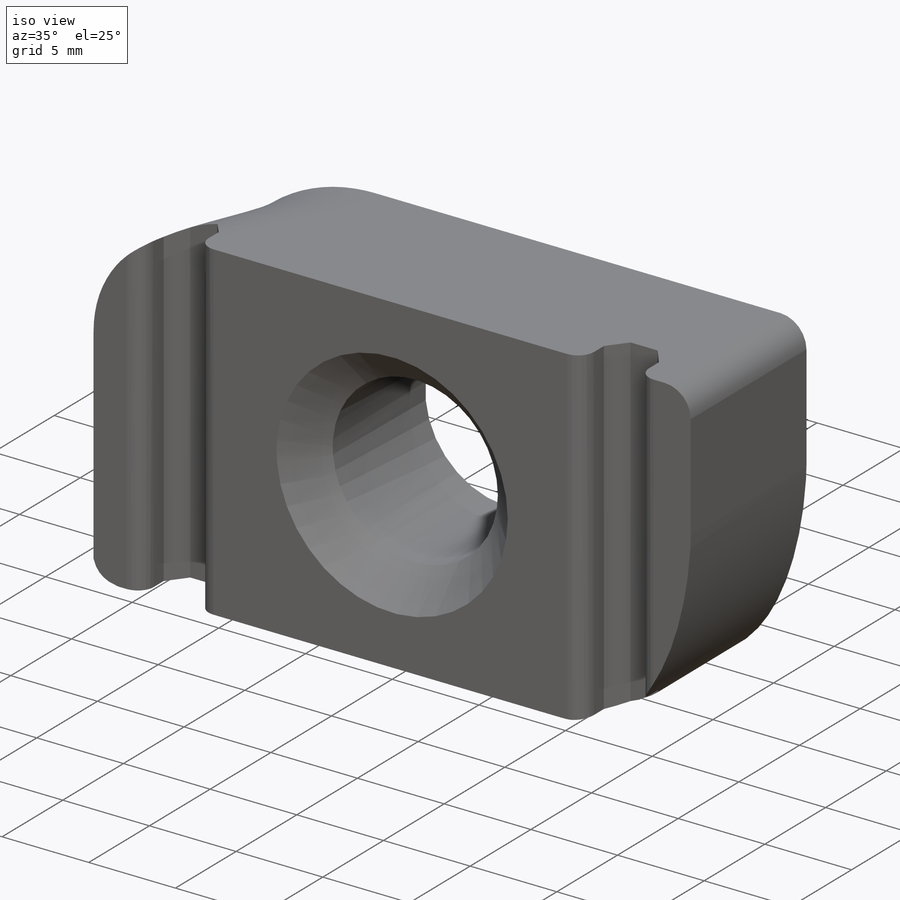
[diagram: iso view]
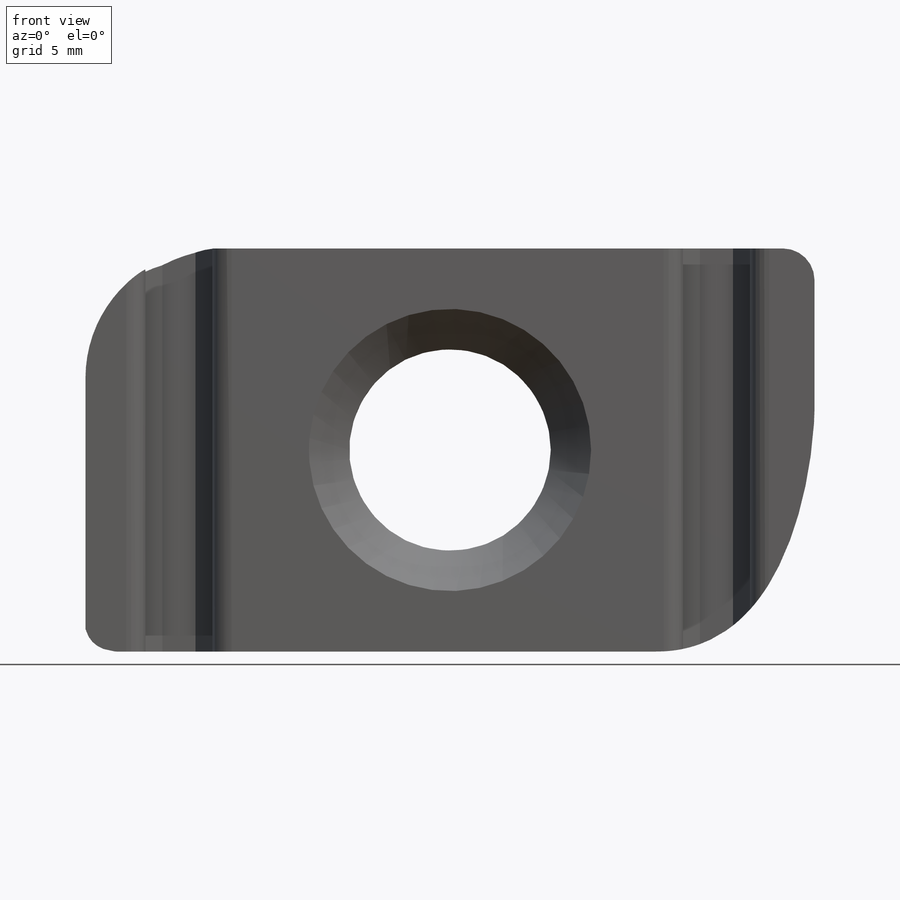
[diagram: front view]
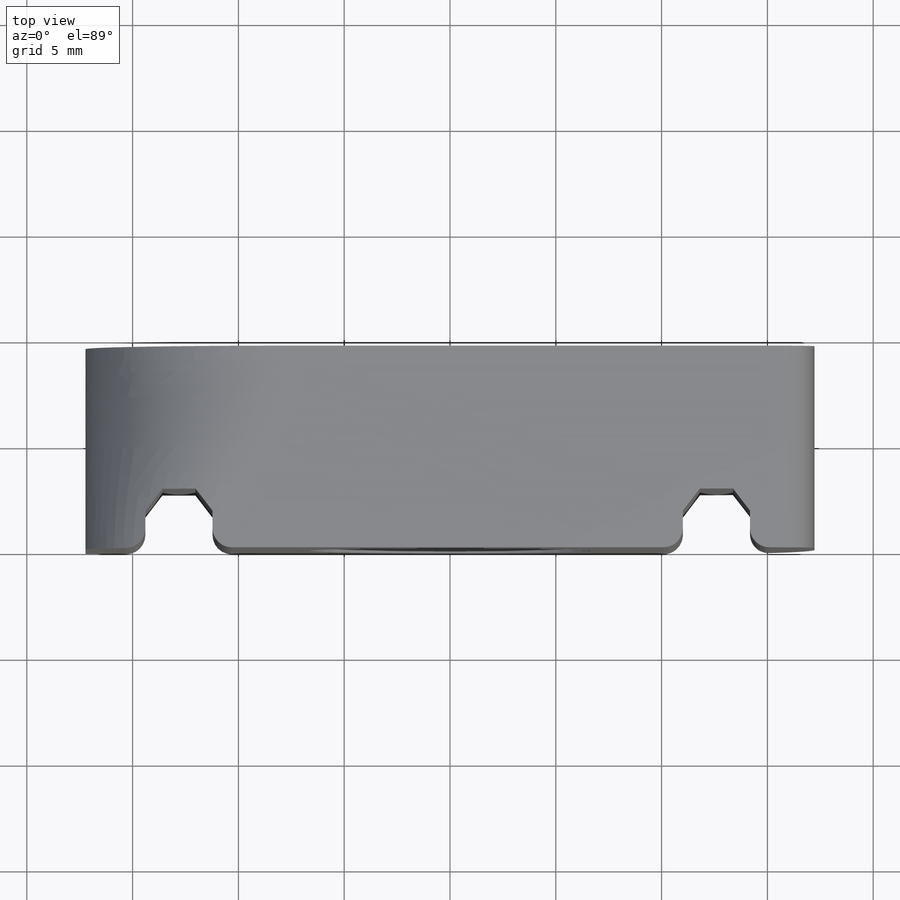
[diagram: top view]
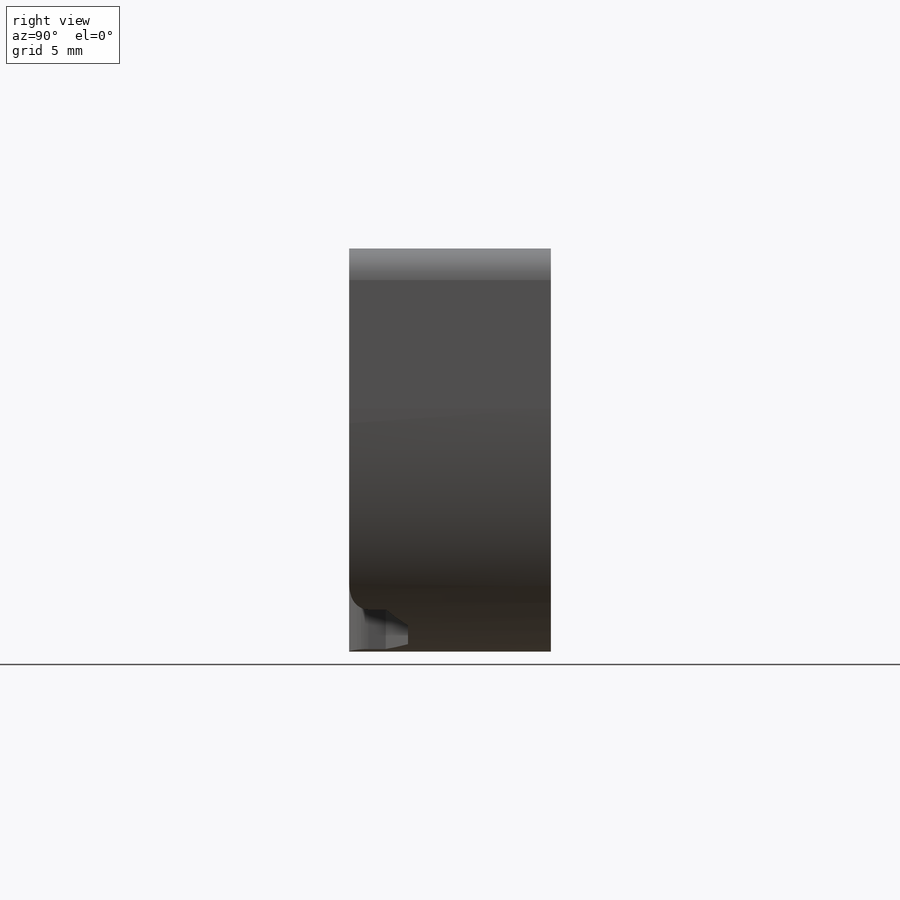
[diagram: right view]
SOLIDWORKS PART (.sldprt)
format: sldprt  version: not decoded by parser v0  size: 541,696 bytes
history: native  units: mm
features: sketch x5, cut_extrude x2, fillet x2, material x1, extrude x1, hole x1, chamfer x1 (+13 scaffold rows collapsed)
feature tree (26):
  scaffold x13  (default folders/planes/origin — collapsed)
  material  "Material <not specified>"
  sketch  "Sketch1"  dims[c1.D1=~17.550324mm c1.D2=~19.019678mm c1.D3=~44.52283mm c1.D4=~52.002143mm c1.D5=~0.002752mm c1.D6=~7.584899mm c1.D7=~17.987309mm c1.D8=~19.052752mm c2.D1=19.05mm c2.D2=~7.582147mm c2.D3=~34.451819mm c2.D4=~1.469355mm c2.D5=~26.972507mm c2.D6=~1.065443mm]
  extrude  "Boss-Extrude1"  Depth=9.530503mm
  sketch  "Sketch2"  dims[c1.D1=3.048mm c1.D2=~3.697111mm c1.D3=~5.273569mm c1.D4=~6.067319mm c1.D5=~1.729422mm c1.D6=~2.778125mm c2.D2=3.175mm c2.D3=~0.804792mm]
  cut_extrude  "Cut-Extrude1"  Depth=18.892824mm
  sketch  "Sketch3"  dims[c1.D1=~22.402094mm c1.D2=~23.206851mm c1.D3=~24.783344mm c1.D4=~25.577094mm c1.D5=~1.729422mm c1.D6=~1.048703mm c2.D1=25.4mm c2.D2=3.175mm]
  cut_extrude  "Cut-Extrude2"  Depth=19.05mm
  hole  "Hole1"  Diameter=12.7mm Depth=9.530503mm
  sketch  "Sketch5"  dims[c1.D1=~11.205108mm c1.D2=9.525mm c2.D1=17.272mm]
  sketch  "Sketch4"  dims[Diameter=12.7mm Depth=~9.530503mm D0=~9.591554mm D01=~6.121639mm]
  chamfer  "Chamfer1"  Distance=1.904967mm Angle=45.000157deg
  fillet  "Fillet1"  Radius=0.905503mm
  fillet  "Fillet2"  Radius=1.494495mm
decode coverage: 12 of 12 modeling features carry decoded parameters
note: ~ marks probable driven/reference dimensions
note: suppression state not decoded; provenance and decode notes live in map.json
